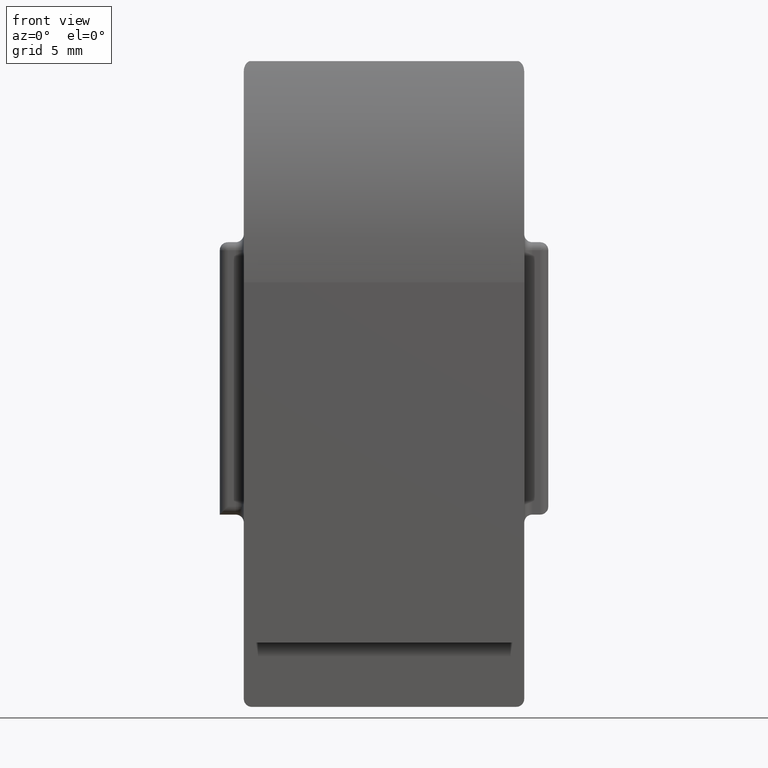
[diagram: clean part render]
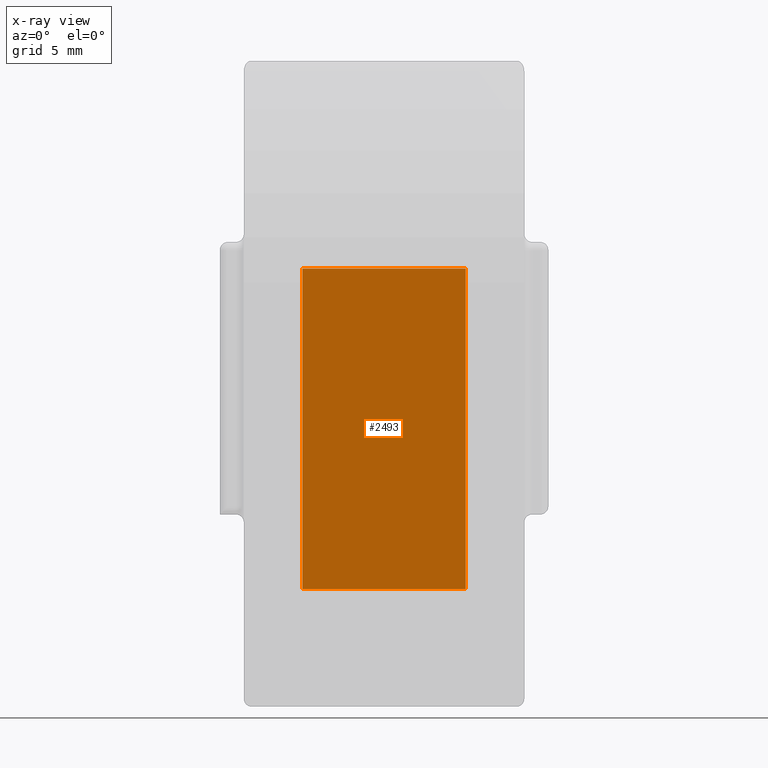
[diagram: x-ray — body ghosted, one internal face saturated and labeled with its STEP entity id]
A machine part, front view, then the same camera in x-ray: the body is ghosted and one INTERNAL B-rep face — a face not visible from any outside direction — is saturated and labeled: STEP entity #2493.
In plain terms, the highlighted planar face has unit normal (0, 1, -0).
Its self-contained STEP definition (entity closure, byte-faithful):
#93 = ORIENTED_EDGE ( 'NONE', *, *, #1401, .F. ) ;
#186 = FACE_OUTER_BOUND ( 'NONE', #1954, .T. ) ;
#245 = EDGE_CURVE ( 'NONE', #1359, #2426, #1503, .T. ) ;
#250 = EDGE_CURVE ( 'NONE', #2426, #1851, #1423, .T. ) ;
#379 = ORIENTED_EDGE ( 'NONE', *, *, #2592, .F. ) ;
#599 = CARTESIAN_POINT ( 'NONE',  ( 20.00000000000000000, 0.0000000000000000000, 0.0000000000000000000 ) ) ;
#769 = CARTESIAN_POINT ( 'NONE',  ( 0.0000000000000000000, 0.0000000000000000000, 0.0000000000000000000 ) ) ;
#836 = DIRECTION ( 'NONE',  ( 1.000000000000000000, 0.0000000000000000000, 0.0000000000000000000 ) ) ;
#857 = VERTEX_POINT ( 'NONE', #2227 ) ;
#889 = CARTESIAN_POINT ( 'NONE',  ( 0.0000000000000000000, 0.0000000000000000000, 0.0000000000000000000 ) ) ;
#890 = DIRECTION ( 'NONE',  ( 1.000000000000000000, 0.0000000000000000000, 0.0000000000000000000 ) ) ;
#1015 = DIRECTION ( 'NONE',  ( 0.0000000000000000000, -1.000000000000000000, 0.0000000000000000000 ) ) ;
#1019 = CARTESIAN_POINT ( 'NONE',  ( 0.0000000000000000000, 10.19999999999999900, 0.0000000000000000000 ) ) ;
#1122 = ORIENTED_EDGE ( 'NONE', *, *, #250, .F. ) ;
#1132 = DIRECTION ( 'NONE',  ( -0.0000000000000000000, 0.0000000000000000000, 1.000000000000000000 ) ) ;
#1143 = CARTESIAN_POINT ( 'NONE',  ( 0.0000000000000000000, 0.0000000000000000000, 0.0000000000000000000 ) ) ;
#1156 = PLANE ( 'NONE',  #2462 ) ;
#1346 = VECTOR ( 'NONE', #836, 1000.000000000000000 ) ;
#1352 = CARTESIAN_POINT ( 'NONE',  ( 20.00000000000000000, 10.19999999999999900, 0.0000000000000000000 ) ) ;
#1356 = DIRECTION ( 'NONE',  ( -1.000000000000000000, 0.0000000000000000000, 0.0000000000000000000 ) ) ;
#1359 = VERTEX_POINT ( 'NONE', #1403 ) ;
#1383 = VECTOR ( 'NONE', #1015, 1000.000000000000000 ) ;
#1401 = EDGE_CURVE ( 'NONE', #857, #1359, #2302, .T. ) ;
#1402 = ORIENTED_EDGE ( 'NONE', *, *, #245, .F. ) ;
#1403 = CARTESIAN_POINT ( 'NONE',  ( 0.0000000000000000000, 10.19999999999999900, 0.0000000000000000000 ) ) ;
#1423 = LINE ( 'NONE', #889, #1346 ) ;
#1503 = LINE ( 'NONE', #1019, #1383 ) ;
#1851 = VERTEX_POINT ( 'NONE', #599 ) ;
#1954 = EDGE_LOOP ( 'NONE', ( #1402, #93, #379, #1122 ) ) ;
#2212 = CARTESIAN_POINT ( 'NONE',  ( 20.00000000000000000, 0.0000000000000000000, 0.0000000000000000000 ) ) ;
#2224 = DIRECTION ( 'NONE',  ( 0.0000000000000000000, 1.000000000000000000, 0.0000000000000000000 ) ) ;
#2227 = CARTESIAN_POINT ( 'NONE',  ( 20.00000000000000000, 10.19999999999999900, 0.0000000000000000000 ) ) ;
#2298 = VECTOR ( 'NONE', #1356, 1000.000000000000000 ) ;
#2302 = LINE ( 'NONE', #1352, #2298 ) ;
#2426 = VERTEX_POINT ( 'NONE', #769 ) ;
#2462 = AXIS2_PLACEMENT_3D ( 'NONE', #1143, #1132, #890 ) ;
#2493 = ADVANCED_FACE ( 'NONE', ( #186 ), #1156, .F. ) ;
#2592 = EDGE_CURVE ( 'NONE', #1851, #857, #3000, .T. ) ;
#2746 = VECTOR ( 'NONE', #2224, 1000.000000000000000 ) ;
#3000 = LINE ( 'NONE', #2212, #2746 ) ;